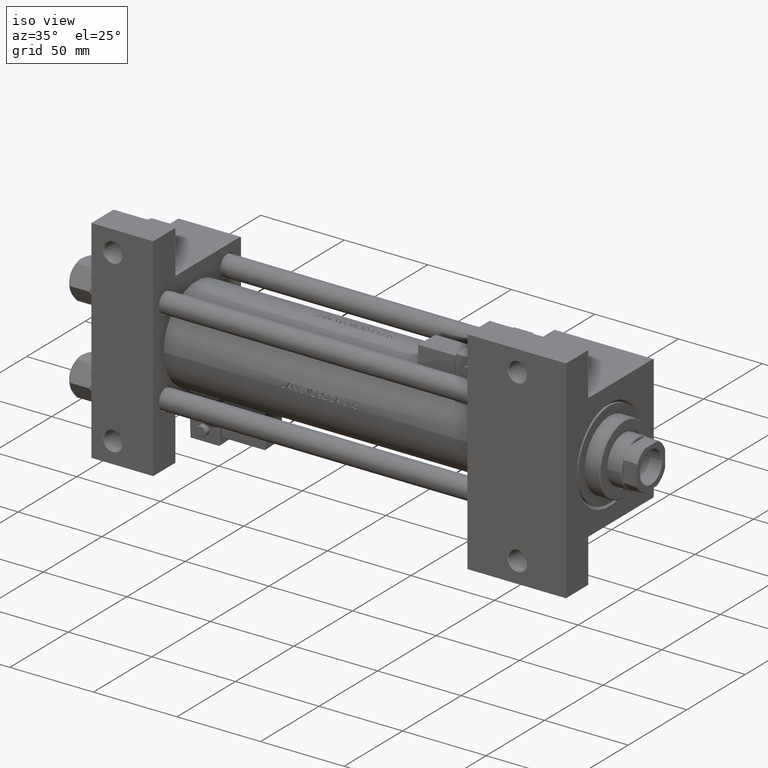
[diagram: clean part render]
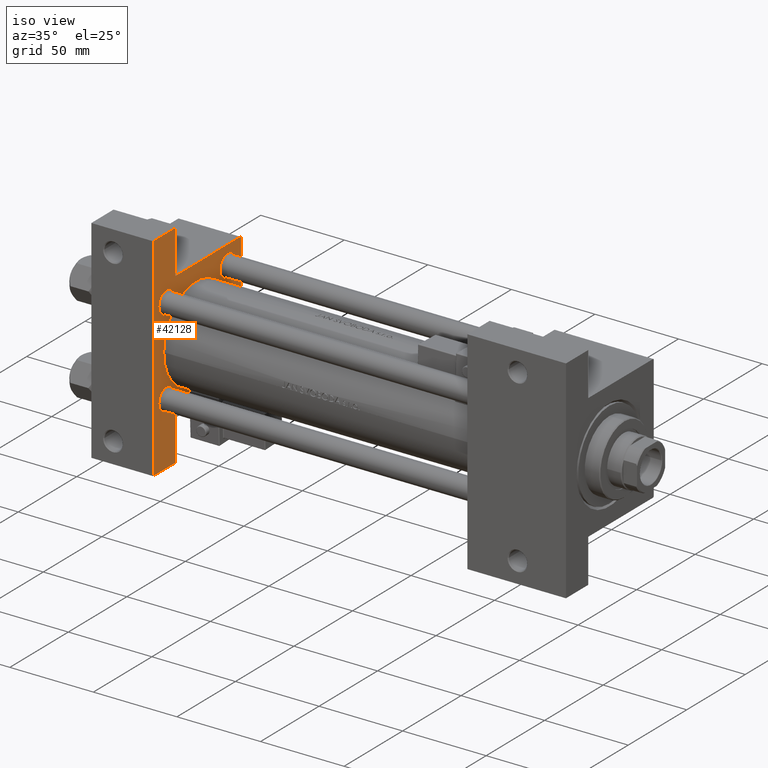
[diagram: same view with one face highlighted and labeled with its STEP entity id]
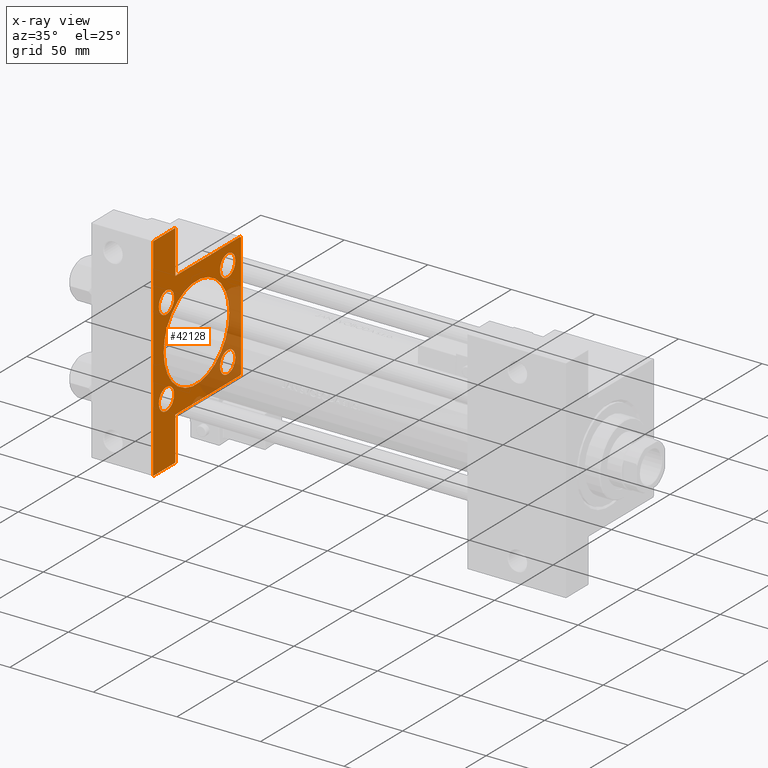
[diagram: x-ray of the same camera — body ghosted, the highlighted face saturated]
A machine part, iso view. The second image highlights one B-rep face of the part: STEP entity #42128.
The next image is the same camera in x-ray: the body ghosted, the highlighted face saturated — about 21% of this face is hidden behind the body in this view.
In plain terms, the highlighted planar face has unit normal (-1, 0, -0).
Its self-contained STEP definition (entity closure, byte-faithful):
#624 = AXIS2_PLACEMENT_3D ( 'NONE', #26574, #19245, #2972 ) ;
#783 = VERTEX_POINT ( 'NONE', #11902 ) ;
#1562 = CIRCLE ( 'NONE', #38028, 6.499999999999946709 ) ;
#1761 = VERTEX_POINT ( 'NONE', #27908 ) ;
#1816 = EDGE_LOOP ( 'NONE', ( #22795, #35961 ) ) ;
#2117 = CARTESIAN_POINT ( 'NONE',  ( 37.00000000000000000, -37.00000000000000711, 37.49999999999999289 ) ) ;
#2471 = ORIENTED_EDGE ( 'NONE', *, *, #39561, .T. ) ;
#2695 = VERTEX_POINT ( 'NONE', #31234 ) ;
#2852 = CARTESIAN_POINT ( 'NONE',  ( 37.00000000000000000, 26.14999999999999858, -19.65000000000005542 ) ) ;
#2956 = EDGE_LOOP ( 'NONE', ( #37973, #31210 ) ) ;
#2972 = DIRECTION ( 'NONE',  ( 0.000000000000000000, 0.000000000000000000, 1.000000000000000000 ) ) ;
#3093 = VERTEX_POINT ( 'NONE', #2117 ) ;
#3136 = DIRECTION ( 'NONE',  ( 0.000000000000000000, 0.000000000000000000, 1.000000000000000000 ) ) ;
#3771 = CIRCLE ( 'NONE', #29463, 28.00000000000000000 ) ;
#3814 = LINE ( 'NONE', #28182, #7880 ) ;
#4290 = AXIS2_PLACEMENT_3D ( 'NONE', #25701, #41243, #49763 ) ;
#4622 = VECTOR ( 'NONE', #28953, 1000.000000000000000 ) ;
#5985 = ORIENTED_EDGE ( 'NONE', *, *, #33879, .T. ) ;
#6257 = FACE_BOUND ( 'NONE', #1816, .T. ) ;
#6498 = EDGE_CURVE ( 'NONE', #22354, #9817, #27515, .T. ) ;
#6881 = CARTESIAN_POINT ( 'NONE',  ( 37.00000000000000000, -63.50000000000000000, -18.50000000000000355 ) ) ;
#7278 = CARTESIAN_POINT ( 'NONE',  ( 37.00000000000000000, 26.14999999999999858, 26.15000000000000213 ) ) ;
#7369 = CARTESIAN_POINT ( 'NONE',  ( 37.00000000000000000, -26.14999999999999147, 26.15000000000000924 ) ) ;
#7383 = CARTESIAN_POINT ( 'NONE',  ( 37.00000000000000711, 0.000000000000000000, -0.5000000000000004441 ) ) ;
#7880 = VECTOR ( 'NONE', #47075, 1000.000000000000000 ) ;
#8178 = DIRECTION ( 'NONE',  ( 0.000000000000000000, 9.251858538542971581E-17, -1.000000000000000000 ) ) ;
#8617 = ORIENTED_EDGE ( 'NONE', *, *, #33703, .F. ) ;
#8745 = VERTEX_POINT ( 'NONE', #33705 ) ;
#9403 = VERTEX_POINT ( 'NONE', #6881 ) ;
#9814 = EDGE_CURVE ( 'NONE', #23019, #49944, #49577, .T. ) ;
#9817 = VERTEX_POINT ( 'NONE', #26292 ) ;
#9824 = CARTESIAN_POINT ( 'NONE',  ( 37.00000000000000000, 26.14999999999999858, 26.15000000000000213 ) ) ;
#9937 = CARTESIAN_POINT ( 'NONE',  ( 37.00000000000000711, 3.429011037612589276E-15, -28.50000000000000000 ) ) ;
#9959 = CARTESIAN_POINT ( 'NONE',  ( 37.00000000000000000, 26.14999999999999858, -26.15000000000000213 ) ) ;
#10165 = ORIENTED_EDGE ( 'NONE', *, *, #39925, .T. ) ;
#10274 = EDGE_LOOP ( 'NONE', ( #17374, #10165 ) ) ;
#10312 = AXIS2_PLACEMENT_3D ( 'NONE', #30115, #49271, #34495 ) ;
#10470 = EDGE_CURVE ( 'NONE', #41780, #2695, #21878, .T. ) ;
#10554 = CARTESIAN_POINT ( 'NONE',  ( 37.00000000000000000, 26.14999999999999858, -32.64999999999994884 ) ) ;
#10850 = EDGE_CURVE ( 'NONE', #783, #30829, #17770, .T. ) ;
#10932 = CARTESIAN_POINT ( 'NONE',  ( 37.00000000000000000, 37.49999999999999289, 37.50000000000000000 ) ) ;
#11341 = CARTESIAN_POINT ( 'NONE',  ( 37.00000000000000000, -26.14999999999999147, -26.15000000000000924 ) ) ;
#11757 = DIRECTION ( 'NONE',  ( 0.000000000000000000, 0.000000000000000000, 1.000000000000000000 ) ) ;
#11858 = VECTOR ( 'NONE', #45916, 1000.000000000000114 ) ;
#11902 = CARTESIAN_POINT ( 'NONE',  ( 37.00000000000000000, -26.14999999999999147, -32.64999999999995595 ) ) ;
#13463 = DIRECTION ( 'NONE',  ( 0.000000000000000000, 0.000000000000000000, 1.000000000000000000 ) ) ;
#13484 = ORIENTED_EDGE ( 'NONE', *, *, #30426, .T. ) ;
#13503 = FACE_BOUND ( 'NONE', #28655, .T. ) ;
#13590 = CARTESIAN_POINT ( 'NONE',  ( 37.00000000000000711, 37.50000000000000711, -18.50000000000000355 ) ) ;
#14302 = CARTESIAN_POINT ( 'NONE',  ( 37.00000000000000000, 36.99999999999999289, 37.50000000000000000 ) ) ;
#14337 = CARTESIAN_POINT ( 'NONE',  ( 37.00000000000000000, 37.49999999999999289, 37.50000000000000000 ) ) ;
#16010 = VERTEX_POINT ( 'NONE', #10554 ) ;
#16205 = CIRCLE ( 'NONE', #46830, 6.499999999999946709 ) ;
#17327 = CARTESIAN_POINT ( 'NONE',  ( 37.00000000000000000, 26.14999999999999858, -26.15000000000000213 ) ) ;
#17347 = AXIS2_PLACEMENT_3D ( 'NONE', #9959, #17470, #45207 ) ;
#17374 = ORIENTED_EDGE ( 'NONE', *, *, #43017, .T. ) ;
#17470 = DIRECTION ( 'NONE',  ( -1.000000000000000000, 0.000000000000000000, -0.000000000000000000 ) ) ;
#17770 = CIRCLE ( 'NONE', #10312, 6.499999999999946709 ) ;
#17799 = CARTESIAN_POINT ( 'NONE',  ( 37.00000000000000000, 37.49999999999999289, -37.50000000000000000 ) ) ;
#18166 = ORIENTED_EDGE ( 'NONE', *, *, #6498, .T. ) ;
#18400 = DIRECTION ( 'NONE',  ( 0.000000000000000000, -1.734723475976806848E-16, -1.000000000000000000 ) ) ;
#18650 = CARTESIAN_POINT ( 'NONE',  ( 37.00000000000000000, -63.49999999999998579, 26.72167621838007889 ) ) ;
#18708 = LINE ( 'NONE', #10932, #21063 ) ;
#19016 = DIRECTION ( 'NONE',  ( -1.000000000000000000, 0.000000000000000000, -0.000000000000000000 ) ) ;
#19245 = DIRECTION ( 'NONE',  ( -1.000000000000000000, 0.000000000000000000, -0.000000000000000000 ) ) ;
#19733 = CARTESIAN_POINT ( 'NONE',  ( 37.00000000000001421, 63.50000000000000000, -18.50000000000000355 ) ) ;
#20286 = EDGE_CURVE ( 'NONE', #8745, #41846, #33104, .T. ) ;
#20843 = AXIS2_PLACEMENT_3D ( 'NONE', #9824, #21220, #41443 ) ;
#21063 = VECTOR ( 'NONE', #34537, 1000.000000000000000 ) ;
#21220 = DIRECTION ( 'NONE',  ( -1.000000000000000000, 0.000000000000000000, -0.000000000000000000 ) ) ;
#21488 = DIRECTION ( 'NONE',  ( 1.000000000000000000, -0.000000000000000000, 0.000000000000000000 ) ) ;
#21878 = CIRCLE ( 'NONE', #38450, 28.00000000000000000 ) ;
#22354 = VERTEX_POINT ( 'NONE', #48318 ) ;
#22598 = VECTOR ( 'NONE', #49415, 1000.000000000000000 ) ;
#22795 = ORIENTED_EDGE ( 'NONE', *, *, #50657, .F. ) ;
#23019 = VERTEX_POINT ( 'NONE', #27234 ) ;
#23124 = CARTESIAN_POINT ( 'NONE',  ( 37.00000000000000000, 36.99999999999999289, 37.50000000000000000 ) ) ;
#23479 = CARTESIAN_POINT ( 'NONE',  ( 37.00000000000000000, -37.50000000000000711, 36.99999999999999289 ) ) ;
#24439 = ORIENTED_EDGE ( 'NONE', *, *, #9814, .F. ) ;
#25431 = VERTEX_POINT ( 'NONE', #23124 ) ;
#25701 = CARTESIAN_POINT ( 'NONE',  ( 37.00000000000000000, 0.000000000000000000, 0.000000000000000000 ) ) ;
#25733 = LINE ( 'NONE', #14302, #11858 ) ;
#25752 = ORIENTED_EDGE ( 'NONE', *, *, #35014, .T. ) ;
#25958 = FACE_BOUND ( 'NONE', #44407, .T. ) ;
#26292 = CARTESIAN_POINT ( 'NONE',  ( 37.00000000000000000, -26.14999999999999147, 32.64999999999996305 ) ) ;
#26574 = CARTESIAN_POINT ( 'NONE',  ( 37.00000000000000000, -26.14999999999999147, 26.15000000000000924 ) ) ;
#27021 = EDGE_CURVE ( 'NONE', #9403, #1761, #3814, .T. ) ;
#27175 = DIRECTION ( 'NONE',  ( -1.000000000000000000, 0.000000000000000000, -0.000000000000000000 ) ) ;
#27234 = CARTESIAN_POINT ( 'NONE',  ( 37.00000000000000000, 37.49999999999999289, 37.00000000000000000 ) ) ;
#27515 = CIRCLE ( 'NONE', #33313, 6.499999999999953815 ) ;
#27626 = VECTOR ( 'NONE', #37417, 1000.000000000000000 ) ;
#27693 = ORIENTED_EDGE ( 'NONE', *, *, #20286, .F. ) ;
#27700 = CARTESIAN_POINT ( 'NONE',  ( 37.00000000000000000, -26.14999999999999147, -19.65000000000006253 ) ) ;
#27741 = EDGE_CURVE ( 'NONE', #30829, #783, #16205, .T. ) ;
#27908 = CARTESIAN_POINT ( 'NONE',  ( 37.00000000000000000, -37.50000000000000000, -18.50000000000000355 ) ) ;
#28087 = AXIS2_PLACEMENT_3D ( 'NONE', #7278, #42782, #3136 ) ;
#28182 = CARTESIAN_POINT ( 'NONE',  ( 37.00000000000000000, -63.49999999999998579, -18.50000000000000355 ) ) ;
#28655 = EDGE_LOOP ( 'NONE', ( #37362, #2471 ) ) ;
#28953 = DIRECTION ( 'NONE',  ( 0.000000000000000000, -1.734723475976806848E-16, -1.000000000000000000 ) ) ;
#29327 = FACE_OUTER_BOUND ( 'NONE', #47155, .T. ) ;
#29463 = AXIS2_PLACEMENT_3D ( 'NONE', #33164, #21488, #13463 ) ;
#30115 = CARTESIAN_POINT ( 'NONE',  ( 37.00000000000000000, -26.14999999999999147, -26.15000000000000924 ) ) ;
#30166 = CARTESIAN_POINT ( 'NONE',  ( 37.00000000000000000, -63.50000000000000000, -37.49999999999999289 ) ) ;
#30426 = EDGE_CURVE ( 'NONE', #3093, #41214, #43947, .T. ) ;
#30482 = ORIENTED_EDGE ( 'NONE', *, *, #48509, .T. ) ;
#30661 = VECTOR ( 'NONE', #8178, 1000.000000000000000 ) ;
#30725 = DIRECTION ( 'NONE',  ( 0.000000000000000000, 0.000000000000000000, 1.000000000000000000 ) ) ;
#30829 = VERTEX_POINT ( 'NONE', #27700 ) ;
#31087 = VECTOR ( 'NONE', #32565, 1000.000000000000114 ) ;
#31210 = ORIENTED_EDGE ( 'NONE', *, *, #27741, .T. ) ;
#31234 = CARTESIAN_POINT ( 'NONE',  ( 37.00000000000000711, 0.000000000000000000, 27.50000000000000000 ) ) ;
#31261 = EDGE_CURVE ( 'NONE', #43684, #8745, #44743, .T. ) ;
#32105 = CARTESIAN_POINT ( 'NONE',  ( 37.00000000000000000, 26.14999999999999858, 32.64999999999995595 ) ) ;
#32565 = DIRECTION ( 'NONE',  ( -0.000000000000000000, -0.7071067811865474617, -0.7071067811865474617 ) ) ;
#32992 = VERTEX_POINT ( 'NONE', #51221 ) ;
#33104 = LINE ( 'NONE', #17799, #22598 ) ;
#33164 = CARTESIAN_POINT ( 'NONE',  ( 37.00000000000000711, 0.000000000000000000, -0.5000000000000004441 ) ) ;
#33313 = AXIS2_PLACEMENT_3D ( 'NONE', #7369, #19016, #30725 ) ;
#33703 = EDGE_CURVE ( 'NONE', #49944, #43684, #39422, .T. ) ;
#33705 = CARTESIAN_POINT ( 'NONE',  ( 37.00000000000001421, 63.50000000000000000, -37.50000000000002132 ) ) ;
#33879 = EDGE_CURVE ( 'NONE', #9403, #41846, #46874, .T. ) ;
#33973 = FACE_BOUND ( 'NONE', #10274, .T. ) ;
#34495 = DIRECTION ( 'NONE',  ( 0.000000000000000000, 0.000000000000000000, 1.000000000000000000 ) ) ;
#34537 = DIRECTION ( 'NONE',  ( 0.000000000000000000, -1.000000000000000000, -9.251858538542971581E-17 ) ) ;
#35014 = EDGE_CURVE ( 'NONE', #9817, #22354, #38678, .T. ) ;
#35961 = ORIENTED_EDGE ( 'NONE', *, *, #10470, .F. ) ;
#36570 = DIRECTION ( 'NONE',  ( 2.668805347656626678E-16, 1.000000000000000000, 0.000000000000000000 ) ) ;
#36694 = VERTEX_POINT ( 'NONE', #32105 ) ;
#37362 = ORIENTED_EDGE ( 'NONE', *, *, #38875, .T. ) ;
#37417 = DIRECTION ( 'NONE',  ( 0.000000000000000000, 0.000000000000000000, -1.000000000000000000 ) ) ;
#37973 = ORIENTED_EDGE ( 'NONE', *, *, #10850, .T. ) ;
#38028 = AXIS2_PLACEMENT_3D ( 'NONE', #17327, #40669, #48944 ) ;
#38450 = AXIS2_PLACEMENT_3D ( 'NONE', #7383, #43640, #11757 ) ;
#38641 = VECTOR ( 'NONE', #18400, 1000.000000000000000 ) ;
#38678 = CIRCLE ( 'NONE', #624, 6.499999999999953815 ) ;
#38875 = EDGE_CURVE ( 'NONE', #16010, #48974, #1562, .T. ) ;
#39422 = LINE ( 'NONE', #43816, #39430 ) ;
#39430 = VECTOR ( 'NONE', #36570, 1000.000000000000000 ) ;
#39511 = ORIENTED_EDGE ( 'NONE', *, *, #40350, .T. ) ;
#39561 = EDGE_CURVE ( 'NONE', #48974, #16010, #40526, .T. ) ;
#39925 = EDGE_CURVE ( 'NONE', #36694, #32992, #50410, .T. ) ;
#40330 = CARTESIAN_POINT ( 'NONE',  ( 37.00000000000000000, -37.50000000000000711, 37.49999999999999289 ) ) ;
#40338 = CARTESIAN_POINT ( 'NONE',  ( 37.00000000000000000, -37.50000000000000711, 36.99999999999999289 ) ) ;
#40350 = EDGE_CURVE ( 'NONE', #41214, #1761, #44210, .T. ) ;
#40526 = CIRCLE ( 'NONE', #17347, 6.499999999999946709 ) ;
#40669 = DIRECTION ( 'NONE',  ( -1.000000000000000000, 0.000000000000000000, -0.000000000000000000 ) ) ;
#41214 = VERTEX_POINT ( 'NONE', #23479 ) ;
#41243 = DIRECTION ( 'NONE',  ( -1.000000000000000000, 0.000000000000000000, -0.000000000000000000 ) ) ;
#41443 = DIRECTION ( 'NONE',  ( 0.000000000000000000, 0.000000000000000000, 1.000000000000000000 ) ) ;
#41780 = VERTEX_POINT ( 'NONE', #9937 ) ;
#41846 = VERTEX_POINT ( 'NONE', #30166 ) ;
#42128 = ADVANCED_FACE ( 'NONE', ( #48996, #13503, #25958, #33973, #6257, #29327 ), #45118, .F. ) ;
#42782 = DIRECTION ( 'NONE',  ( -1.000000000000000000, 0.000000000000000000, -0.000000000000000000 ) ) ;
#43017 = EDGE_CURVE ( 'NONE', #32992, #36694, #43174, .T. ) ;
#43174 = CIRCLE ( 'NONE', #20843, 6.499999999999953815 ) ;
#43640 = DIRECTION ( 'NONE',  ( 1.000000000000000000, -0.000000000000000000, 0.000000000000000000 ) ) ;
#43684 = VERTEX_POINT ( 'NONE', #19733 ) ;
#43816 = CARTESIAN_POINT ( 'NONE',  ( 37.00000000000001421, 63.50000000000001421, -18.50000000000000355 ) ) ;
#43891 = EDGE_CURVE ( 'NONE', #23019, #25431, #25733, .T. ) ;
#43947 = LINE ( 'NONE', #40338, #31087 ) ;
#44210 = LINE ( 'NONE', #40330, #30661 ) ;
#44224 = CARTESIAN_POINT ( 'NONE',  ( 37.00000000000001421, 63.50000000000001421, 26.72167621838005047 ) ) ;
#44407 = EDGE_LOOP ( 'NONE', ( #18166, #25752 ) ) ;
#44743 = LINE ( 'NONE', #44224, #4622 ) ;
#45118 = PLANE ( 'NONE',  #4290 ) ;
#45207 = DIRECTION ( 'NONE',  ( 0.000000000000000000, 0.000000000000000000, 1.000000000000000000 ) ) ;
#45916 = DIRECTION ( 'NONE',  ( 0.000000000000000000, -0.7071067811865474617, 0.7071067811865474617 ) ) ;
#46196 = ORIENTED_EDGE ( 'NONE', *, *, #43891, .T. ) ;
#46383 = ORIENTED_EDGE ( 'NONE', *, *, #27021, .F. ) ;
#46830 = AXIS2_PLACEMENT_3D ( 'NONE', #11341, #27175, #49984 ) ;
#46874 = LINE ( 'NONE', #18650, #38641 ) ;
#47075 = DIRECTION ( 'NONE',  ( -0.000000000000000000, 1.000000000000000000, 0.000000000000000000 ) ) ;
#47155 = EDGE_LOOP ( 'NONE', ( #30482, #13484, #39511, #46383, #5985, #27693, #49739, #8617, #24439, #46196 ) ) ;
#48318 = CARTESIAN_POINT ( 'NONE',  ( 37.00000000000000000, -26.14999999999999147, 19.65000000000005542 ) ) ;
#48509 = EDGE_CURVE ( 'NONE', #25431, #3093, #18708, .T. ) ;
#48944 = DIRECTION ( 'NONE',  ( 0.000000000000000000, 0.000000000000000000, 1.000000000000000000 ) ) ;
#48974 = VERTEX_POINT ( 'NONE', #2852 ) ;
#48996 = FACE_BOUND ( 'NONE', #2956, .T. ) ;
#49271 = DIRECTION ( 'NONE',  ( -1.000000000000000000, 0.000000000000000000, -0.000000000000000000 ) ) ;
#49415 = DIRECTION ( 'NONE',  ( 0.000000000000000000, -1.000000000000000000, -9.251858538542972814E-17 ) ) ;
#49577 = LINE ( 'NONE', #14337, #27626 ) ;
#49739 = ORIENTED_EDGE ( 'NONE', *, *, #31261, .F. ) ;
#49763 = DIRECTION ( 'NONE',  ( -0.000000000000000000, 0.000000000000000000, 1.000000000000000000 ) ) ;
#49944 = VERTEX_POINT ( 'NONE', #13590 ) ;
#49984 = DIRECTION ( 'NONE',  ( 0.000000000000000000, 0.000000000000000000, 1.000000000000000000 ) ) ;
#50410 = CIRCLE ( 'NONE', #28087, 6.499999999999953815 ) ;
#50657 = EDGE_CURVE ( 'NONE', #2695, #41780, #3771, .T. ) ;
#51221 = CARTESIAN_POINT ( 'NONE',  ( 37.00000000000000000, 26.14999999999999858, 19.65000000000005187 ) ) ;